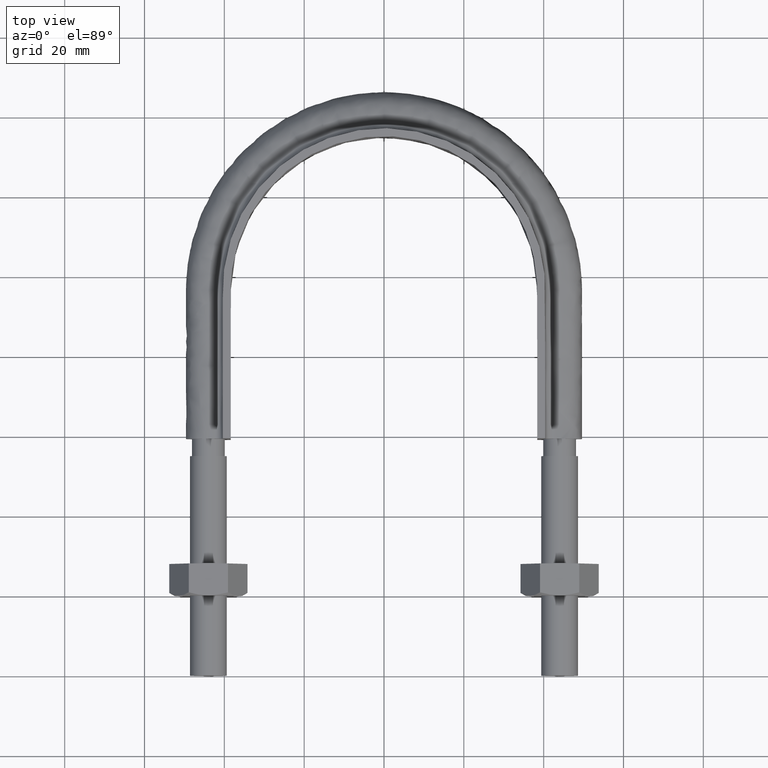
[diagram: clean part render]
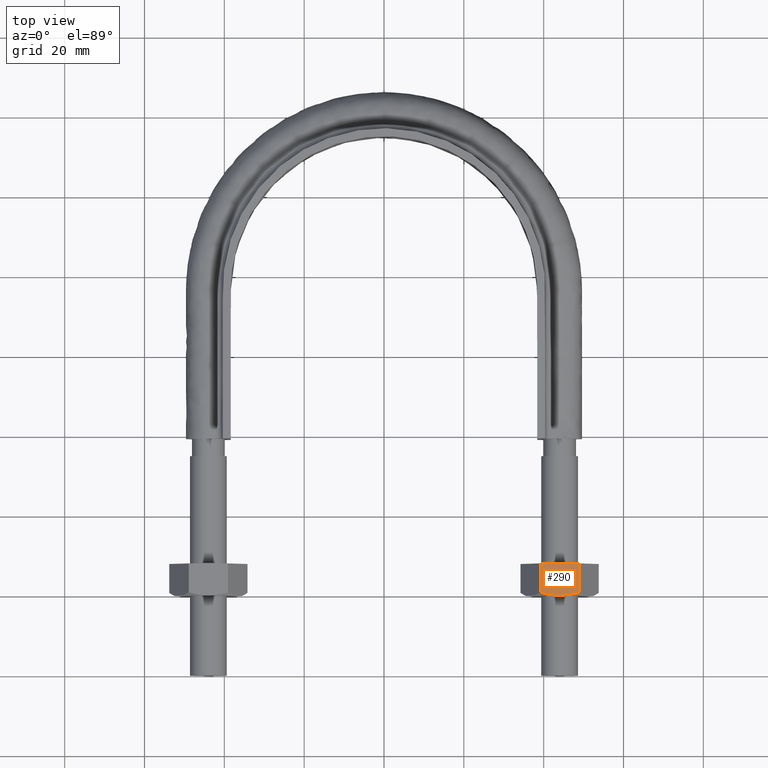
[diagram: same view with one face highlighted and labeled with its STEP entity id]
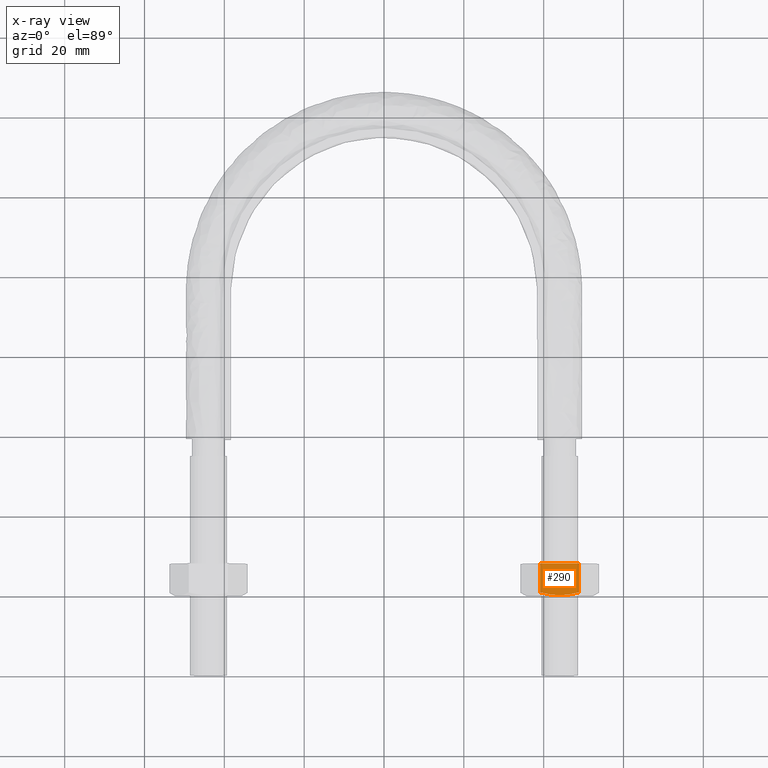
[diagram: x-ray of the same camera — body ghosted, the highlighted face saturated]
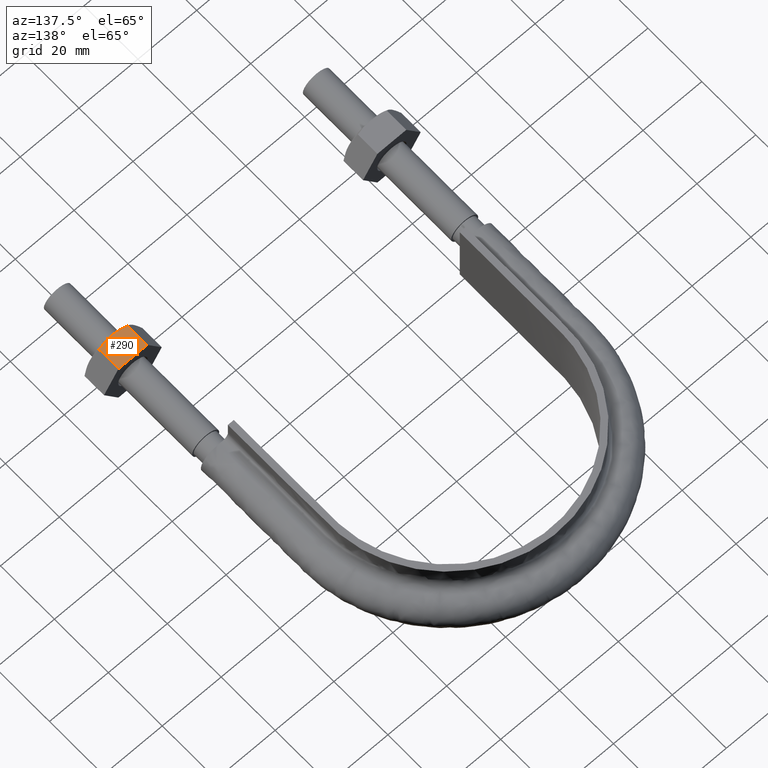
[diagram: same view with one face highlighted and labeled with its STEP entity id]
A machine part, top view. The second image highlights one B-rep face of the part: STEP entity #290.
The next image is the same camera in x-ray: the body ghosted, the highlighted face saturated — about 0% of this face is hidden behind the body in this view.
A second angle (auxiliary view) of the same face is appended — the face is thin or edge-on in the first view.
In plain terms, the highlighted planar face has unit normal (0, 0, -1).
Its self-contained STEP definition (entity closure, byte-faithful):
#290 = ADVANCED_FACE( '', ( #454 ), #455, .F. );
#454 = FACE_OUTER_BOUND( '', #1297, .T. );
#455 = PLANE( '', #1298 );
#1297 = EDGE_LOOP( '', ( #1808, #1809, #1810, #1811, #1812 ) );
#1298 = AXIS2_PLACEMENT_3D( '', #1813, #1814, #1815 );
#1808 = ORIENTED_EDGE( '', *, *, #1988, .F. );
#1809 = ORIENTED_EDGE( '', *, *, #1974, .F. );
#1810 = ORIENTED_EDGE( '', *, *, #1942, .F. );
#1811 = ORIENTED_EDGE( '', *, *, #1964, .F. );
#1812 = ORIENTED_EDGE( '', *, *, #1984, .F. );
#1813 = CARTESIAN_POINT( '', ( 39.0925227118906, 28.0000000000000, 8.49999999999575 ) );
#1814 = DIRECTION( '', ( 4.99642496284821E-045, 6.12303176911189E-017, -1.00000000000000 ) );
#1815 = DIRECTION( '', ( -1.00000000000000, 3.81037202460124E-077, -4.99642496284821E-045 ) );
#1942 = EDGE_CURVE( '', #2157, #2160, #2161, .T. );
#1964 = EDGE_CURVE( '', #2199, #2157, #2201, .T. );
#1974 = EDGE_CURVE( '', #2160, #2212, #2216, .T. );
#1984 = EDGE_CURVE( '', #2228, #2199, #2230, .F. );
#1988 = EDGE_CURVE( '', #2212, #2228, #2234, .T. );
#2157 = VERTEX_POINT( '', #2732 );
#2160 = VERTEX_POINT( '', #2735 );
#2161 = LINE( '', #2736, #2737 );
#2199 = VERTEX_POINT( '', #2798 );
#2201 = LINE( '', #2800, #2801 );
#2212 = VERTEX_POINT( '', #2820 );
#2216 = B_SPLINE_CURVE_WITH_KNOTS( '', 3, ( #2829, #2830, #2831, #2832, #2833, #2834 ), .UNSPECIFIED., .F., .F., ( 4, 2, 4 ), ( 7.70342238303416E-017, 0.00246745482903494, 0.00493490965806980 ), .UNSPECIFIED. );
#2228 = VERTEX_POINT( '', #2858 );
#2230 = LINE( '', #2860, #2861 );
#2234 = B_SPLINE_CURVE_WITH_KNOTS( '', 3, ( #2872, #2873, #2874, #2875, #2876, #2877 ), .UNSPECIFIED., .F., .F., ( 4, 2, 4 ), ( 0.000000000000000, 0.00246745482903483, 0.00493490965806967 ), .UNSPECIFIED. );
#2732 = CARTESIAN_POINT( '', ( 48.8774993593004, 28.0000000000000, 8.49999999999575 ) );
#2735 = CARTESIAN_POINT( '', ( 48.8774993593005, 20.7505553499462, 8.49999999999575 ) );
#2736 = CARTESIAN_POINT( '', ( 48.8774993593004, 28.0000000000000, 8.49999999999575 ) );
#2737 = VECTOR( '', #3037, 1000.00000000000 );
#2798 = CARTESIAN_POINT( '', ( 39.1225006406996, 28.0000000000000, 8.49999999999575 ) );
#2800 = CARTESIAN_POINT( '', ( 48.8999999999976, 28.0000000000000, 8.49999999999575 ) );
#2801 = VECTOR( '', #3076, 1000.00000000000 );
#2820 = CARTESIAN_POINT( '', ( 44.0000000000000, 20.0000000000000, 8.49999999999575 ) );
#2829 = CARTESIAN_POINT( '', ( 48.8774993593006, 20.7505553499462, 8.49999999999575 ) );
#2830 = CARTESIAN_POINT( '', ( 48.0805717066753, 20.5215585493654, 8.49999999999575 ) );
#2831 = CARTESIAN_POINT( '', ( 47.2774431756613, 20.3328582843705, 8.49999999999575 ) );
#2832 = CARTESIAN_POINT( '', ( 45.6533062476849, 20.0716504305290, 8.49999999999575 ) );
#2833 = CARTESIAN_POINT( '', ( 44.8321659501903, 20.0000000000000, 8.49999999999575 ) );
#2834 = CARTESIAN_POINT( '', ( 44.0000000000000, 20.0000000000000, 8.49999999999575 ) );
#2858 = CARTESIAN_POINT( '', ( 39.1225006406995, 20.7505553499461, 8.49999999999575 ) );
#2860 = CARTESIAN_POINT( '', ( 39.1225006406996, 28.0000000000000, 8.49999999999575 ) );
#2861 = VECTOR( '', #3109, 1000.00000000000 );
#2872 = CARTESIAN_POINT( '', ( 44.0000000000000, 20.0000000000000, 8.49999999999575 ) );
#2873 = CARTESIAN_POINT( '', ( 43.1678340498097, 20.0000000000000, 8.49999999999575 ) );
#2874 = CARTESIAN_POINT( '', ( 42.3466937523152, 20.0716504305290, 8.49999999999575 ) );
#2875 = CARTESIAN_POINT( '', ( 40.7225568243388, 20.3328582843705, 8.49999999999575 ) );
#2876 = CARTESIAN_POINT( '', ( 39.9194282933247, 20.5215585493654, 8.49999999999575 ) );
#2877 = CARTESIAN_POINT( '', ( 39.1225006406995, 20.7505553499462, 8.49999999999575 ) );
#3037 = DIRECTION( '', ( -2.44921270764475E-016, -1.00000000000000, -6.12303176911189E-017 ) );
#3076 = DIRECTION( '', ( 1.00000000000000, -2.44921270764475E-016, -1.49966072182164E-032 ) );
#3109 = DIRECTION( '', ( -2.44921270764475E-016, -1.00000000000000, -6.12303176911189E-017 ) );